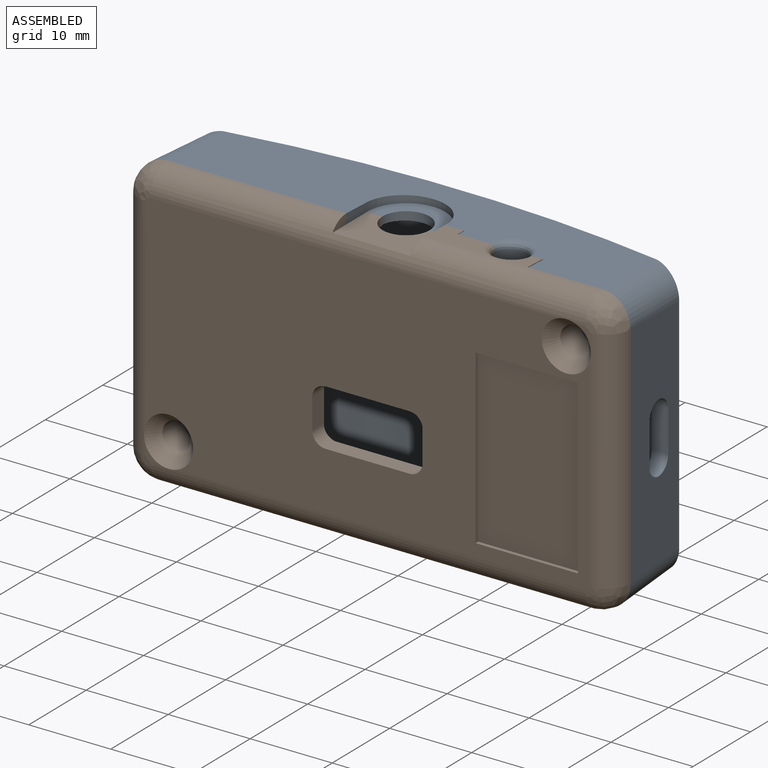
[diagram: assembled view]
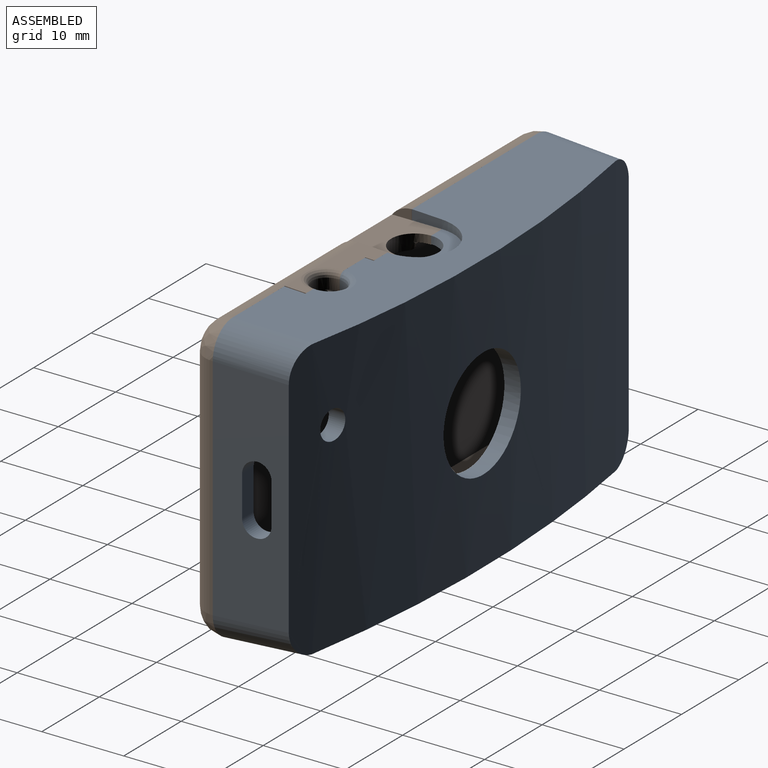
[diagram: assembled view, second angle]
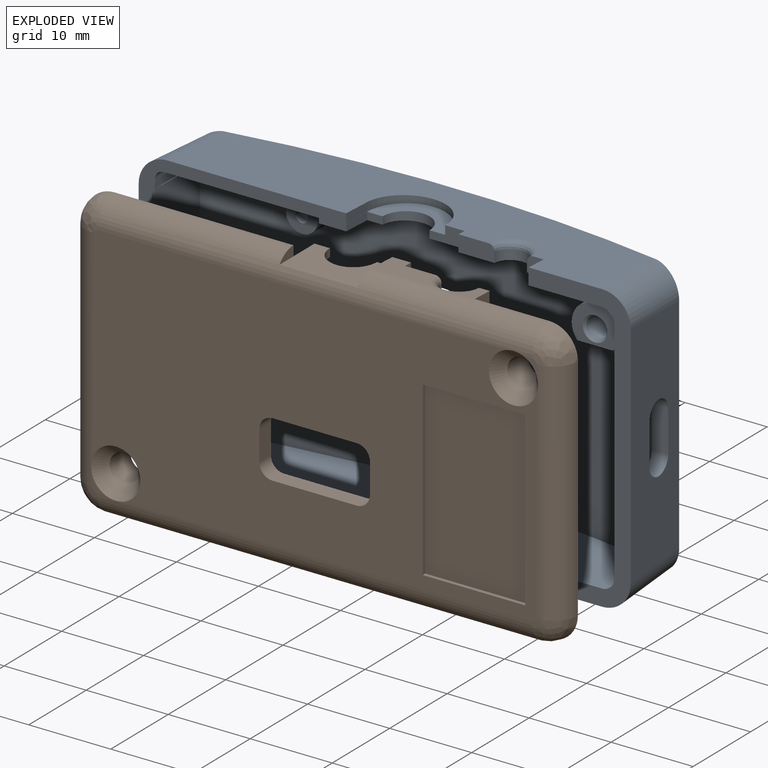
[diagram: exploded view]
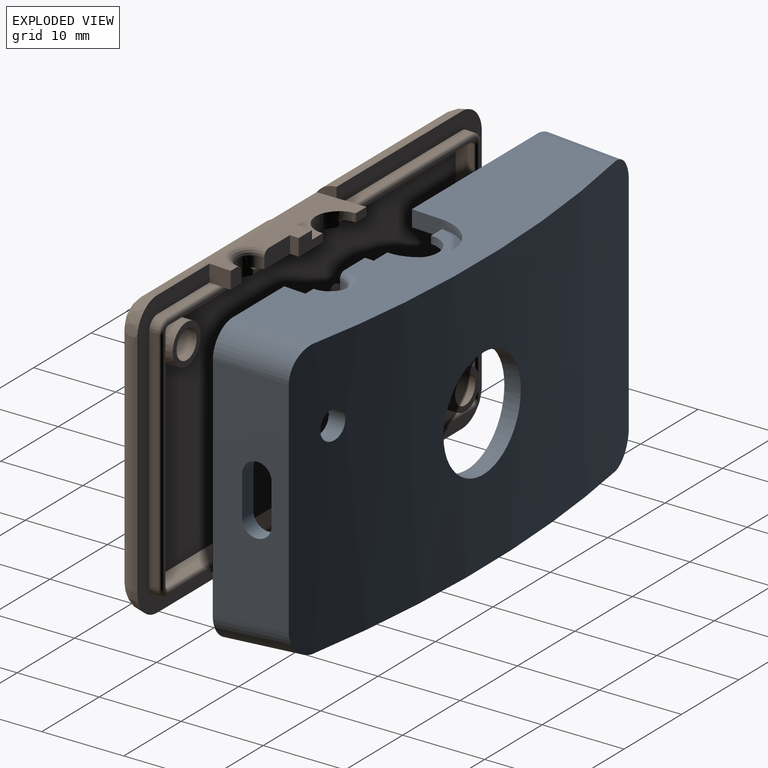
[diagram: exploded view, second angle]
ASSEMBLY  parts=2 mates=2
PART A: 108 faces, bbox 61.2x27.9x36.3 mm
  f0: plane 60x35mm, normal (0,-1,0), area 298.7mm2, adj f5,f8,f10,f14,f26,f27,f33,f34
  f1: cylinder r=1.78mm len=3.56mm, axis (0,-1,0), area 22.9mm2, adj f2,f3,f29,f30,f65
  f2: cylinder r=145.6mm len=55.36mm, axis (0,0,1), area 1425.2mm2, adj f1,f4,f19,f20,f28,f29,f30,f31
  f3: cylinder r=147.6mm len=59.21mm, axis (0,0,1), area 1866.4mm2, adj f1,f4,f5,f8,f9,f10,f11,f13
  f4: cylinder r=6.73mm len=13.46mm, axis (0,-1,0), area 89.5mm2, adj f2,f3
  f5: plane 53.01x12mm, normal (0,0.04,-1), area 590.4mm2, adj f0,f3,f6,f7,f11,f12,f13,f27
  f6: cylinder r=3mm len=9.6mm, axis (-1,0,0), area 0.1mm2, adj f5,f7,f67
  f7: plane 9.62x0mm, normal (0,0,-1), area 0mm2, adj f5,f6,f13,f67
  f8: plane 53.42x12.42mm, normal (0,0.04,1), area 472.5mm2, adj f0,f3,f9,f15,f17,f18,f26,f46
  f9: cylinder r=3.48mm len=3.52mm, axis (-0.04,-1,0), area 1.4mm2, adj f3,f8,f10,f26
  f10: plane 28.01x9mm, normal (-1,0.04,0), area 248.8mm2, adj f0,f3,f9,f11,f26,f27
  f11: cylinder r=3.45mm len=3.52mm, axis (0.04,1,0), area 3.8mm2, adj f3,f5,f10,f12,f27,f69
  f12: plane 9.65x0.01mm, normal (0,0,-1), area 0mm2, adj f5,f11,f68,f69
  f13: cylinder r=3.48mm len=3.52mm, axis (0.04,-1,0), area 1.3mm2, adj f3,f5,f7,f14,f45,f67
  f14: plane 28.04x9.03mm, normal (1,0.04,0), area 221.9mm2, adj f0,f3,f13,f15,f45,f46,f53,f54
  f15: cylinder r=3.49mm len=3.52mm, axis (-0.04,1,0), area 0.9mm2, adj f3,f8,f14,f46
  f16: plane 1.64x0.72mm, normal (0,0,-1), area 0mm2, adj f25,f45,f67
  f17: bspline ~5.53x3.14mm, area 8.7mm2, adj f8,f18,f60,f64
  f18: plane 4.4x2.02mm, normal (0,-1,0), area 8.6mm2, adj f8,f17,f61,f64,f78
  f19: plane 28.14x0mm, normal (0,-1,0), area 0.1mm2, adj f2,f33,f34,f44
  f20: plane 28.14x0mm, normal (0,-1,0), area 0.1mm2, adj f2,f49,f50,f52
  f21: cylinder r=145.6mm len=1.5mm, axis (0,0,1), area 1.8mm2, adj f97
  f22: cylinder r=145.6mm len=2.5mm, axis (0,0,1), area 5mm2, adj f95
  f23: cylinder r=145.6mm len=2.5mm, axis (0,0,1), area 5mm2, adj f87
  f24: cylinder r=145.6mm len=1.5mm, axis (0,0,1), area 1.8mm2, adj f85
  f25: cylinder r=145.6mm len=0.64mm, axis (0,0,1), area 0mm2, adj f16,f45,f67
  f26: cylinder r=3.5mm len=9.24mm, axis (-0.04,-1,0.04), area 49.3mm2, adj f0,f8,f9,f10
  f27: cylinder r=3.5mm len=9.26mm, axis (-0.04,-1,-0.04), area 46.9mm2, adj f0,f5,f10,f11,f69
  f28: plane 1.59x1.14mm, normal (0,-0.02,-1), area 1.7mm2, adj f2,f31,f82,f83
  f29: plane 1.15x0.23mm, normal (0,0,-1), area 0.2mm2, adj f1,f2,f31,f65
  f30: plane 1.67x1.08mm, normal (0,0,-1), area 1.5mm2, adj f1,f2,f31,f65
  f31: cone r=3mm half-angle=1deg, axis (0,1,0), area 75.3mm2, adj f2,f28,f29,f30,f32,f65,f66,f77
  f32: plane 5.06x1.21mm, normal (0.71,-0.02,-0.71), area 7.5mm2, adj f2,f31,f44,f90
  f33: plane 28.04x7.38mm, normal (-1,-0.04,0), area 179mm2, adj f0,f19,f34,f44,f53,f54,f55,f56
  f34: bspline ~8.46x1.5mm, area 15.6mm2, adj f0,f2,f19,f33,f36
  f35: cylinder r=0.5mm len=23.58mm, axis (-1,0,0), area 9mm2, adj f2,f36
  f36: plane 53.02x9.54mm, normal (0,-0.04,1), area 480.2mm2, adj f0,f2,f34,f35,f49
  f37: plane 5.18x1.21mm, normal (0.71,-0.02,-0.71), area 7.7mm2, adj f2,f47,f49,f91
  f38: plane 1.59x1.14mm, normal (0,-0.02,-1), area 1.7mm2, adj f2,f39,f47,f92
  f39: cone r=0.75mm half-angle=1deg, axis (0,1,0), area 3.5mm2, adj f2,f38,f92,f93
  f40: plane 4.13x1.22mm, normal (1,0,0), area 5mm2, adj f2,f41,f100,f101
  f41: plane 5.08x4.44mm, normal (0,0,1), area 21.8mm2, adj f2,f40,f99,f100
  f42: cone r=2mm half-angle=1deg, axis (0,1,0), area 27.3mm2, adj f2,f98
  f43: cone r=2mm half-angle=1deg, axis (0,1,0), area 27.3mm2, adj f2,f96
  f44: bspline ~8.46x1.5mm, area 11.4mm2, adj f0,f2,f19,f32,f33,f78,f89,f90
  f45: cylinder r=3.5mm len=9.26mm, axis (0.04,-1,-0.04), area 48.3mm2, adj f0,f5,f13,f14,f16,f25,f67
  f46: cylinder r=3.5mm len=9.24mm, axis (0.04,-1,0.04), area 49.9mm2, adj f0,f8,f14,f15
  f47: cone r=3mm half-angle=1deg, axis (0,1,0), area 75.7mm2, adj f2,f37,f38,f48,f71,f72,f73,f74
  f48: plane 5.06x1.21mm, normal (-0.71,-0.02,0.71), area 7.5mm2, adj f2,f47,f49,f91
  f49: bspline ~8.46x1.5mm, area 11.4mm2, adj f0,f2,f20,f36,f37,f48,f50,f91
  f50: plane 28.01x7.35mm, normal (1,-0.04,0), area 205.8mm2, adj f0,f20,f49,f52,f102,f104
  f51: cylinder r=0.5mm len=23.58mm, axis (1,0,0), area 9mm2, adj f2,f78
  f52: bspline ~8.38x1.5mm, area 0.8mm2, adj f2,f20,f50,f78,f102
  f53: plane 4.98x2mm, normal (0,1,0), area 10mm2, adj f14,f33,f54,f56
  f54: cylinder r=1.74mm len=3.48mm, axis (1,0,0), area 10.9mm2, adj f14,f33,f53,f55
  f55: plane 4.98x2mm, normal (0,-1,0), area 10mm2, adj f14,f33,f54,f56
  f56: cylinder r=1.74mm len=3.48mm, axis (1,0,0), area 10.9mm2, adj f14,f33,f53,f55
  f57: plane 1.88x0.94mm, normal (0,-1,0), area 1.8mm2, adj f58,f63,f78,f79
  f58: plane 3.66x0.94mm, normal (1,0,0), area 3.1mm2, adj f0,f57,f78,f79
  f59: plane 2.59x2.11mm, normal (-1,0,0), area 5.2mm2, adj f0,f8,f60,f78
  f60: plane 2.02x2.02mm, normal (0,-1,0), area 3.9mm2, adj f8,f17,f59,f64,f78
  f61: plane 2.05x1.07mm, normal (-1,0,0), area 2.1mm2, adj f8,f18,f62,f78
  f62: plane 4.27x2mm, normal (0,-1,0), area 6.5mm2, adj f8,f61,f63,f78,f79,f81
  f63: cylinder r=2.87mm len=5.74mm, axis (0,0,1), area 8.5mm2, adj f57,f62,f78,f79
  f64: cylinder r=1.99mm len=3.99mm, axis (0,0,1), area 7.8mm2, adj f17,f18,f60,f78
  f65: plane 4.6x0.92mm, normal (0,-1,0), area 3.3mm2, adj f1,f29,f30,f31,f66
  f66: plane 4.99x4.6mm, normal (0,0,-1), area 22.4mm2, adj f31,f65,f77
  f67: bspline ~25.96x4.64mm, area 1.2mm2, adj f6,f7,f13,f16,f25,f45
  f68: cylinder r=3mm len=9.6mm, axis (-1,0,0), area 0.1mm2, adj f5,f12,f69
  f69: cylinder r=3.41mm len=0.06mm, axis (-0.28,-0.96,-0.04), area 0mm2, adj f11,f12,f27,f68
  f70: plane 1.4x0.08mm, normal (0,0,-1), area 0.1mm2, adj f71,f73,f74,f75
  f71: plane 4.6x1.21mm, normal (0,-1,0), area 3.7mm2, adj f47,f70,f72,f73,f74
  f72: plane 5.08x4.61mm, normal (0,0,1), area 22.8mm2, adj f47,f71,f76
  f73: plane 1.14x0.84mm, normal (-1,-0.02,0), area 0.9mm2, adj f2,f47,f70,f71,f75,f86
  f74: plane 1.14x1.09mm, normal (1,-0.02,0), area 1.2mm2, adj f2,f47,f70,f71,f75,f86
  f75: plane 1.65x1.4mm, normal (0,-1,0), area 2.1mm2, adj f70,f73,f74,f86
  f76: plane 5.72x4.7mm, normal (0,-1,0), area 15.5mm2, adj f47,f72,f94
  f77: plane 5.72x4.7mm, normal (0,-1,0), area 15.5mm2, adj f31,f66,f88
  f78: plane 53.26x9.77mm, normal (0,-0.04,-1), area 261mm2, adj f0,f2,f18,f44,f51,f52,f57,f58
  f79: plane 9.51x8.41mm, normal (0,0,1), area 22.6mm2, adj f0,f57,f58,f62,f63,f80,f81
  f80: plane 3.66x1.22mm, normal (1,0,0), area 4.2mm2, adj f0,f8,f79,f81
  f81: cylinder r=4.76mm len=9.51mm, axis (0,0,-1), area 15.8mm2, adj f8,f62,f79,f80
  f82: cone r=0.75mm half-angle=1deg, axis (0,1,0), area 3.6mm2, adj f2,f28,f83,f84
  f83: plane 1.83x1.4mm, normal (0,-1,0), area 2.3mm2, adj f28,f31,f82,f84
  f84: plane 1.58x1.08mm, normal (0,-0.02,1), area 1.6mm2, adj f2,f31,f82,f83
  f85: cylinder r=0.75mm len=2.3mm, axis (0,-1,0), area 10.8mm2, adj f24,f98
  f86: cone r=0.75mm half-angle=1deg, axis (0,1,0), area 2.1mm2, adj f2,f73,f74,f75
  f87: cylinder r=1.25mm len=5.46mm, axis (0,-1,0), area 42.9mm2, adj f23,f88
  f88: cone r=1.47mm half-angle=41deg, axis (0,-1,0), area 3.3mm2, adj f77,f87
  f89: plane 5.18x1.21mm, normal (-0.71,-0.02,0.71), area 7.7mm2, adj f2,f31,f44,f90
  f90: plane 1.71x1.71mm, normal (0,-1,0), area 1.3mm2, adj f31,f32,f44,f89
  f91: plane 1.71x1.71mm, normal (0,-1,0), area 1.3mm2, adj f37,f47,f48,f49
  f92: plane 1.83x1.4mm, normal (0,-1,0), area 2.3mm2, adj f38,f39,f47,f93
  f93: plane 1.59x1.14mm, normal (0,-0.02,1), area 1.7mm2, adj f2,f39,f47,f92
  f94: cone r=1.47mm half-angle=41deg, axis (0,-1,0), area 3.3mm2, adj f76,f95
  f95: cylinder r=1.25mm len=5.88mm, axis (0,-1,0), area 46.2mm2, adj f22,f94
  f96: plane 3.9x3.9mm, normal (0,-1,0), area 10.1mm2, adj f43,f97
  f97: cylinder r=0.75mm len=2.15mm, axis (0,-1,0), area 10.1mm2, adj f21,f96
  f98: plane 3.9x3.9mm, normal (0,-1,0), area 10.1mm2, adj f42,f85
  f99: plane 4.44x1.22mm, normal (-1,0,0), area 5.4mm2, adj f2,f41,f100,f101
  f100: plane 5.08x1.22mm, normal (0,-1,0), area 6.2mm2, adj f40,f41,f99,f101
  f101: plane 5.08x4.44mm, normal (0,0,-1), area 21.8mm2, adj f2,f40,f99,f100
  f102: plane 19.99x2.11mm, normal (0,-1,0), area 18.6mm2, adj f50,f52,f78,f103,f104,f105,f106,f107
  f103: plane 7x0.91mm, normal (-1,0,0), area 5.3mm2, adj f0,f78,f102,f105
  f104: plane 7x0.31mm, normal (0,0,1), area 1.1mm2, adj f50,f102,f107
  f105: plane 18.97x7mm, normal (0,0,-1), area 132.8mm2, adj f0,f102,f103,f106
  f106: cylinder r=1.02mm len=7mm, axis (0,-1,0), area 11.2mm2, adj f0,f102,f105,f107
  f107: plane 7x1.09mm, normal (1,0,0), area 7.6mm2, adj f0,f102,f104,f106
PART B: 102 faces, bbox 60.1x35.2x9.7 mm
  f0: plane 3.02x2.59mm, normal (0,1,0.04), area 4.2mm2, adj f9,f66,f81,f97
  f1: plane 53.73x28.73mm, normal (0,0,1), area 1403mm2, adj f28,f30,f39,f40,f41,f42,f54,f55
  f2: plane 3.66x1.01mm, normal (1,0,0), area 3.5mm2, adj f11,f14,f77,f83,f91
  f3: plane 4.17x2.07mm, normal (0,0,1), area 6.6mm2, adj f4,f8,f80,f82,f90,f91
  f4: plane 7.92x3.66mm, normal (0,1,0.04), area 19.4mm2, adj f3,f66,f79,f80,f90,f97
  f5: cylinder r=0.4mm len=9.93mm, axis (1,0,0), area 5.9mm2, adj f8,f12,f17,f78
  f6: plane 54.92x29.92mm, normal (0,0,1), area 18.4mm2, adj f13,f15,f16,f18,f19,f32,f33,f34
  f7: cylinder r=0.4mm len=10.19mm, axis (1,0,0), area 6mm2, adj f12,f17,f56,f78
  f8: plane 9.98x2.55mm, normal (0,-1,-0.03), area 18.4mm2, adj f3,f5,f12,f78,f79,f80,f82
  f9: plane 2.59x2.19mm, normal (-1,0,0), area 5.4mm2, adj f0,f10,f11,f76,f81
  f10: plane 9.07x1.11mm, normal (0,1,0.03), area 10.1mm2, adj f9,f11,f15,f60
  f11: plane 60.11x35.11mm, normal (0,0,1), area 326.1mm2, adj f2,f9,f10,f14,f24,f25,f50,f51
  f12: torus R=33.5mm, axis (0,-1,0.03), area 0.6mm2, adj f5,f7,f8,f17,f56,f82
  f13: torus R=33.5mm, axis (0,-1,0.03), area 0.7mm2, adj f6,f16,f19,f56,f77,f82
  f14: plane 21.81x1.11mm, normal (0,1,0.03), area 24.3mm2, adj f2,f11,f16,f50
  f15: cylinder r=0.4mm len=11.59mm, axis (1,0,0), area 7mm2, adj f6,f10,f49,f76,f78
  f16: cylinder r=0.4mm len=24.2mm, axis (1,0,0), area 14.8mm2, adj f6,f13,f14,f48,f77
  f17: plane 9.44x0.12mm, normal (0,0,1), area 1.2mm2, adj f5,f7,f12,f78
  f18: cylinder r=0.4mm len=11.59mm, axis (1,0,0), area 7mm2, adj f6,f36,f56,f78
  f19: cylinder r=0.4mm len=24.47mm, axis (1,0,0), area 14.9mm2, adj f6,f13,f33,f56
  f20: bspline ~5.99x5.98mm, area 28.4mm2, adj f21,f24,f26,f63,f67
  f21: bspline ~3.56x3.49mm, area 39.2mm2, adj f20,f31
  f22: bspline ~5.99x5.98mm, area 28.4mm2, adj f23,f25,f27,f66,f67
  f23: bspline ~3.56x3.49mm, area 39.2mm2, adj f22,f29
  f24: cylinder r=3mm len=53mm, axis (-1,0,0), area 249.4mm2, adj f11,f20,f26,f61,f62,f67
  f25: cylinder r=3mm len=28mm, axis (0,1,0), area 131.6mm2, adj f11,f22,f27,f62,f65,f67
  f26: plane 1.57x1.57mm, normal (0,0,-1), area 0.8mm2, adj f20,f24,f61,f63
  f27: plane 1.57x1.57mm, normal (0,0,-1), area 0.8mm2, adj f22,f25,f65,f66
  f28: cone r=2.5mm half-angle=1deg, axis (0,0,-1), area 46.6mm2, adj f1,f29
  f29: plane 4.95x4.95mm, normal (0,0,1), area 9.2mm2, adj f23,f28
  f30: cone r=2.5mm half-angle=1deg, axis (0,0,-1), area 46.6mm2, adj f1,f31
  f31: plane 4.95x4.95mm, normal (0,0,1), area 9.2mm2, adj f21,f30
  f32: cylinder r=0.4mm len=28mm, axis (0,-1,0), area 17.2mm2, adj f6,f33,f34,f42
  f33: torus R=0.84mm, axis (0,0,-1), area 0.6mm2, adj f6,f19,f32,f57
  f34: torus R=0.84mm, axis (0,0,-1), area 0.6mm2, adj f6,f32,f35,f41
  f35: cylinder r=0.4mm len=53mm, axis (-1,0,0), area 32.6mm2, adj f6,f34,f37,f40
  f36: torus R=0.84mm, axis (0,0,-1), area 0.6mm2, adj f6,f18,f38,f55
  f37: torus R=0.84mm, axis (0,0,-1), area 0.6mm2, adj f6,f35,f38,f39
  f38: cylinder r=0.4mm len=28mm, axis (0,1,0), area 17.2mm2, adj f6,f36,f37,f54
  f39: cone r=0.4mm half-angle=2deg, axis (0,0,1), area 1.3mm2, adj f1,f37,f40,f54
  f40: plane 53x2.11mm, normal (0,1,0.03), area 112.1mm2, adj f1,f35,f39,f41
  f41: cone r=0.4mm half-angle=2deg, axis (0,0,1), area 1.3mm2, adj f1,f34,f40,f42
  f42: plane 28x2.11mm, normal (-1,0,0.03), area 59.2mm2, adj f1,f32,f41,f57
  f43: cylinder r=0.4mm len=53mm, axis (-1,0,0), area 32.6mm2, adj f6,f44,f45,f53
  f44: torus R=0.96mm, axis (0,0,-1), area 1.2mm2, adj f6,f43,f46,f52
  f45: torus R=0.96mm, axis (0,0,-1), area 1.2mm2, adj f6,f43,f47,f58
  f46: cylinder r=0.4mm len=28mm, axis (0,-1,0), area 17.2mm2, adj f6,f44,f48,f51
  f47: cylinder r=0.4mm len=28mm, axis (0,1,0), area 17.2mm2, adj f6,f45,f49,f59
  f48: torus R=0.96mm, axis (0,0,-1), area 1.2mm2, adj f6,f16,f46,f50
  f49: torus R=0.96mm, axis (0,0,-1), area 1.2mm2, adj f6,f15,f47,f60
  f50: cone r=1.4mm half-angle=2deg, axis (0,0,-1), area 2.4mm2, adj f11,f14,f48,f51
  f51: plane 28x1.11mm, normal (1,0,0.03), area 31.2mm2, adj f11,f46,f50,f52
  f52: cone r=1.4mm half-angle=2deg, axis (0,0,-1), area 2.4mm2, adj f11,f44,f51,f53
  f53: plane 53x1.11mm, normal (0,-1,0.03), area 59.1mm2, adj f11,f43,f52,f58
  f54: plane 28x2.11mm, normal (1,0,0.03), area 59.2mm2, adj f1,f38,f39,f55
  f55: cone r=0.4mm half-angle=2deg, axis (0,0,1), area 1.3mm2, adj f1,f36,f54,f56
  f56: plane 53.05x2.65mm, normal (0,-1,0.03), area 110.9mm2, adj f1,f7,f12,f13,f18,f19,f55,f57
  f57: cone r=0.4mm half-angle=2deg, axis (0,0,1), area 1.3mm2, adj f1,f33,f42,f56
  f58: cone r=1.4mm half-angle=2deg, axis (0,0,-1), area 2.4mm2, adj f11,f45,f53,f59
  f59: plane 28x1.11mm, normal (-1,0,0.03), area 31.2mm2, adj f11,f47,f58,f60
  f60: cone r=1.4mm half-angle=2deg, axis (0,0,-1), area 2.4mm2, adj f10,f11,f49,f59
  f61: bspline ~7x7mm, area 17.8mm2, adj f11,f24,f26,f63
  f62: bspline ~7x3.5mm, area 17.8mm2, adj f11,f24,f25,f67
  f63: cylinder r=3mm len=28mm, axis (0,-1,0), area 131.6mm2, adj f11,f20,f26,f61,f64,f67
  f64: bspline ~7x7mm, area 17.8mm2, adj f11,f63,f66,f67
  f65: bspline ~7x3.5mm, area 17.8mm2, adj f11,f25,f27,f66
  f66: cylinder r=3mm len=53mm, axis (1,0,0), area 222.7mm2, adj f0,f4,f11,f22,f27,f64,f65,f67
  f67: plane 54.15x29.15mm, normal (0,0,-1), area 1156.6mm2, adj f20,f22,f24,f25,f62,f63,f64,f66
  f68: cylinder r=1.6mm len=2mm, axis (0,0,1), area 5mm2, adj f1,f67,f69,f75
  f69: plane 10.27x2mm, normal (0,1,0), area 20.5mm2, adj f1,f67,f68,f70
  f70: cylinder r=1.6mm len=2mm, axis (0,0,1), area 5mm2, adj f1,f67,f69,f71
  f71: plane 3.67x2mm, normal (-1,0,0), area 7.3mm2, adj f1,f67,f70,f72
  f72: cylinder r=1.6mm len=2mm, axis (0,0,1), area 5mm2, adj f1,f67,f71,f73
  f73: plane 10.27x2mm, normal (0,-1,0), area 20.5mm2, adj f1,f67,f72,f74
  f74: cylinder r=1.6mm len=2mm, axis (0,0,1), area 5mm2, adj f1,f67,f73,f75
  f75: plane 3.67x2mm, normal (1,0,0), area 7.3mm2, adj f1,f67,f68,f74
  f76: plane 2.53x1.48mm, normal (0,-1,-0.03), area 3.1mm2, adj f9,f15,f78,f81
  f77: plane 2.55x2.46mm, normal (0,-1,-0.03), area 5.5mm2, adj f2,f13,f16,f82,f83
  f78: cylinder r=1.99mm len=3.99mm, axis (0,-1,0), area 12mm2, adj f5,f6,f7,f8,f15,f17,f18,f56
  f79: plane 4.48x2.08mm, normal (0,0,1), area 9.2mm2, adj f4,f8,f78,f80,f97
  f80: plane 2.12x1.07mm, normal (-1,0,0), area 2.2mm2, adj f3,f4,f8,f79
  f81: plane 2.08x1.87mm, normal (0,0,1), area 3.8mm2, adj f0,f9,f76,f78,f97
  f82: cylinder r=2.87mm len=5.74mm, axis (0,-1,0), area 13.4mm2, adj f3,f8,f12,f13,f56,f77,f83,f91
  f83: plane 1.87x1.01mm, normal (0,0,1), area 1.9mm2, adj f2,f77,f82,f91
  f84: plane 20.98x0.45mm, normal (1,0,0), area 9.5mm2, adj f67,f85,f87,f88
  f85: plane 12.5x0.45mm, normal (0,-1,0), area 5.7mm2, adj f67,f84,f86,f88
  f86: plane 20.98x0.45mm, normal (-1,0,0), area 9.5mm2, adj f67,f85,f87,f88
  f87: plane 12.5x0.45mm, normal (0,1,0), area 5.7mm2, adj f67,f84,f86,f88
  f88: plane 20.98x12.5mm, normal (0,0,-1), area 262.2mm2, adj f84,f85,f86,f87
  f89: plane 2.42x1.22mm, normal (-1,0,0), area 2.1mm2, adj f11,f66,f91
  f90: plane 6.07x1.22mm, normal (1,0,0), area 6.2mm2, adj f3,f4,f66,f91
  f91: plane 9.49x6.07mm, normal (0,1,0), area 44.7mm2, adj f2,f3,f66,f82,f83,f89,f90
  f92: plane 2.27x1.22mm, normal (1,0,0), area 2.8mm2, adj f1,f93,f95,f96
  f93: plane 6.1x2.27mm, normal (0,1,0), area 13.9mm2, adj f1,f92,f94,f96
  f94: plane 2.27x1.22mm, normal (-1,0,0), area 2.8mm2, adj f1,f93,f95,f96
  f95: plane 6.1x2.27mm, normal (0,-1,0), area 13.9mm2, adj f1,f92,f94,f96
  f96: plane 6.1x1.22mm, normal (0,0,1), area 7.4mm2, adj f92,f93,f94,f95
  f97: bspline ~5.51x2.75mm, area 8.4mm2, adj f0,f4,f66,f78,f79,f81
  f98: cylinder r=0.75mm len=7.39mm, axis (0,0,-1), area 34.8mm2, adj f1,f99
  f99: plane 1.5x1.5mm, normal (0,0,1), area 1.8mm2, adj f98
  f100: cylinder r=0.75mm len=7.39mm, axis (0,0,-1), area 34.8mm2, adj f1,f101
  f101: plane 1.5x1.5mm, normal (0,0,1), area 1.8mm2, adj f100
PLACE A t=(-18.72,-6.16,23.47)mm
PLACE B rot(axis=(0,-0.71,-0.71),180deg) t=(-23.31,-9.16,17.15)mm
MATE cylindrical B.f28 <-> A.f31  axis (0,-1,0) through (-0.05,-7.72,32.69)mm
MATE planar B.f3 <-> A.f62  axis (0,1,0) through (-18.94,-2.5,37.09)mm
